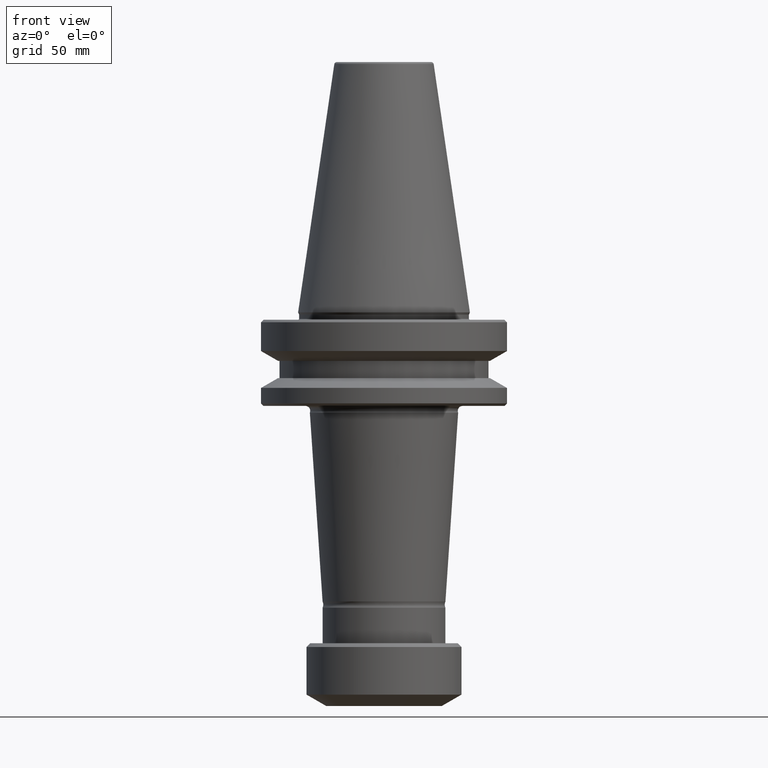
[diagram: clean part render]
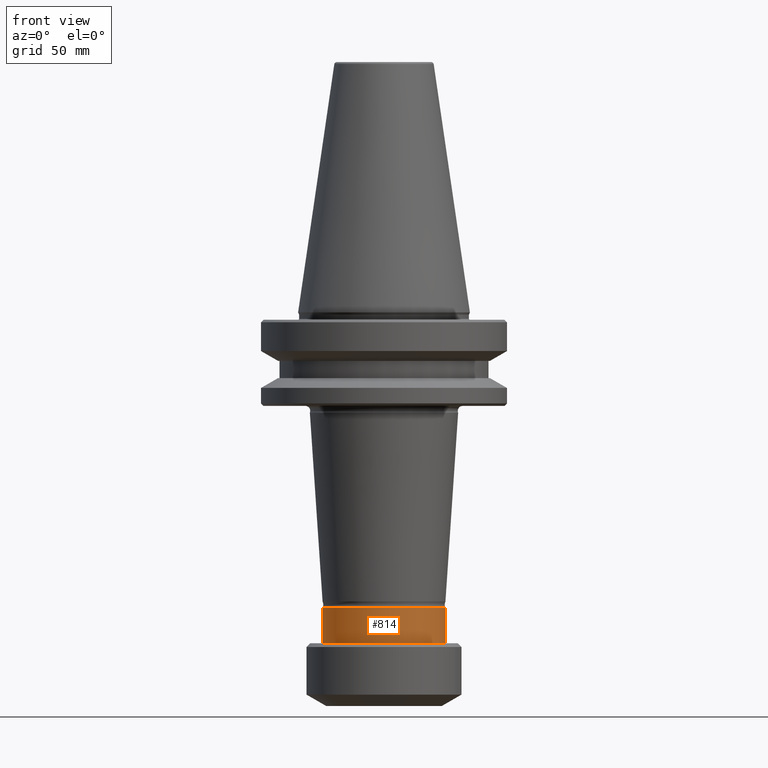
[diagram: same view with one face highlighted and labeled with its STEP entity id]
A machine part, front view. The second image highlights one B-rep face of the part: STEP entity #814.
In plain terms, the highlighted cylindrical surface (partial cylindrical patch) has radius 24.95 mm, axis along (-0, -0, 1).
Its self-contained STEP definition (entity closure, byte-faithful):
#4 = EDGE_CURVE ( 'NONE', #785, #1028, #240, .T. ) ;
#72 = CIRCLE ( 'NONE', #405, 24.95000000000002800 ) ;
#80 = EDGE_LOOP ( 'NONE', ( #957, #562, #1156, #965 ) ) ;
#118 = DIRECTION ( 'NONE',  ( -0.0000000000000000000, -0.0000000000000000000, 1.000000000000000000 ) ) ;
#146 = AXIS2_PLACEMENT_3D ( 'NONE', #717, #238, #798 ) ;
#168 = LINE ( 'NONE', #213, #1234 ) ;
#181 = DIRECTION ( 'NONE',  ( 1.000000000000000000, 0.0000000000000000000, 0.0000000000000000000 ) ) ;
#192 = CARTESIAN_POINT ( 'NONE',  ( -24.95000000000002800, 3.055493763872649900E-015, -134.5046026282869000 ) ) ;
#213 = CARTESIAN_POINT ( 'NONE',  ( -24.95000000000002800, 3.055493763872649900E-015, 138.9069148892923000 ) ) ;
#216 = EDGE_CURVE ( 'NONE', #1305, #1028, #1124, .T. ) ;
#238 = DIRECTION ( 'NONE',  ( -0.0000000000000000000, -0.0000000000000000000, 1.000000000000000000 ) ) ;
#240 = LINE ( 'NONE', #618, #777 ) ;
#279 = CARTESIAN_POINT ( 'NONE',  ( -24.95000000000002800, 3.055493763872649900E-015, -120.0000000000015500 ) ) ;
#282 = CYLINDRICAL_SURFACE ( 'NONE', #1199, 24.95000000000002800 ) ;
#323 = DIRECTION ( 'NONE',  ( -0.0000000000000000000, -0.0000000000000000000, 1.000000000000000000 ) ) ;
#335 = CARTESIAN_POINT ( 'NONE',  ( 0.0000000000000000000, 0.0000000000000000000, -134.5046026282869000 ) ) ;
#386 = CARTESIAN_POINT ( 'NONE',  ( 0.0000000000000000000, 0.0000000000000000000, 138.9069148892923000 ) ) ;
#405 = AXIS2_PLACEMENT_3D ( 'NONE', #335, #1139, #1132 ) ;
#562 = ORIENTED_EDGE ( 'NONE', *, *, #757, .F. ) ;
#618 = CARTESIAN_POINT ( 'NONE',  ( 24.95000000000002800, 0.0000000000000000000, 138.9069148892923000 ) ) ;
#717 = CARTESIAN_POINT ( 'NONE',  ( 0.0000000000000000000, 0.0000000000000000000, -120.0000000000015500 ) ) ;
#757 = EDGE_CURVE ( 'NONE', #785, #1317, #72, .T. ) ;
#777 = VECTOR ( 'NONE', #886, 1000.000000000000000 ) ;
#785 = VERTEX_POINT ( 'NONE', #911 ) ;
#798 = DIRECTION ( 'NONE',  ( 1.000000000000000000, 0.0000000000000000000, 0.0000000000000000000 ) ) ;
#814 = ADVANCED_FACE ( 'NONE', ( #1136 ), #282, .T. ) ;
#886 = DIRECTION ( 'NONE',  ( -0.0000000000000000000, -0.0000000000000000000, 1.000000000000000000 ) ) ;
#911 = CARTESIAN_POINT ( 'NONE',  ( 24.95000000000002800, 0.0000000000000000000, -134.5046026282869000 ) ) ;
#957 = ORIENTED_EDGE ( 'NONE', *, *, #998, .F. ) ;
#965 = ORIENTED_EDGE ( 'NONE', *, *, #216, .F. ) ;
#998 = EDGE_CURVE ( 'NONE', #1317, #1305, #168, .T. ) ;
#1028 = VERTEX_POINT ( 'NONE', #1253 ) ;
#1124 = CIRCLE ( 'NONE', #146, 24.95000000000002800 ) ;
#1132 = DIRECTION ( 'NONE',  ( -1.000000000000000000, 0.0000000000000000000, 0.0000000000000000000 ) ) ;
#1136 = FACE_OUTER_BOUND ( 'NONE', #80, .T. ) ;
#1139 = DIRECTION ( 'NONE',  ( 0.0000000000000000000, 0.0000000000000000000, -1.000000000000000000 ) ) ;
#1156 = ORIENTED_EDGE ( 'NONE', *, *, #4, .T. ) ;
#1199 = AXIS2_PLACEMENT_3D ( 'NONE', #386, #323, #181 ) ;
#1234 = VECTOR ( 'NONE', #118, 1000.000000000000000 ) ;
#1253 = CARTESIAN_POINT ( 'NONE',  ( 24.95000000000002800, 0.0000000000000000000, -120.0000000000015500 ) ) ;
#1305 = VERTEX_POINT ( 'NONE', #279 ) ;
#1317 = VERTEX_POINT ( 'NONE', #192 ) ;